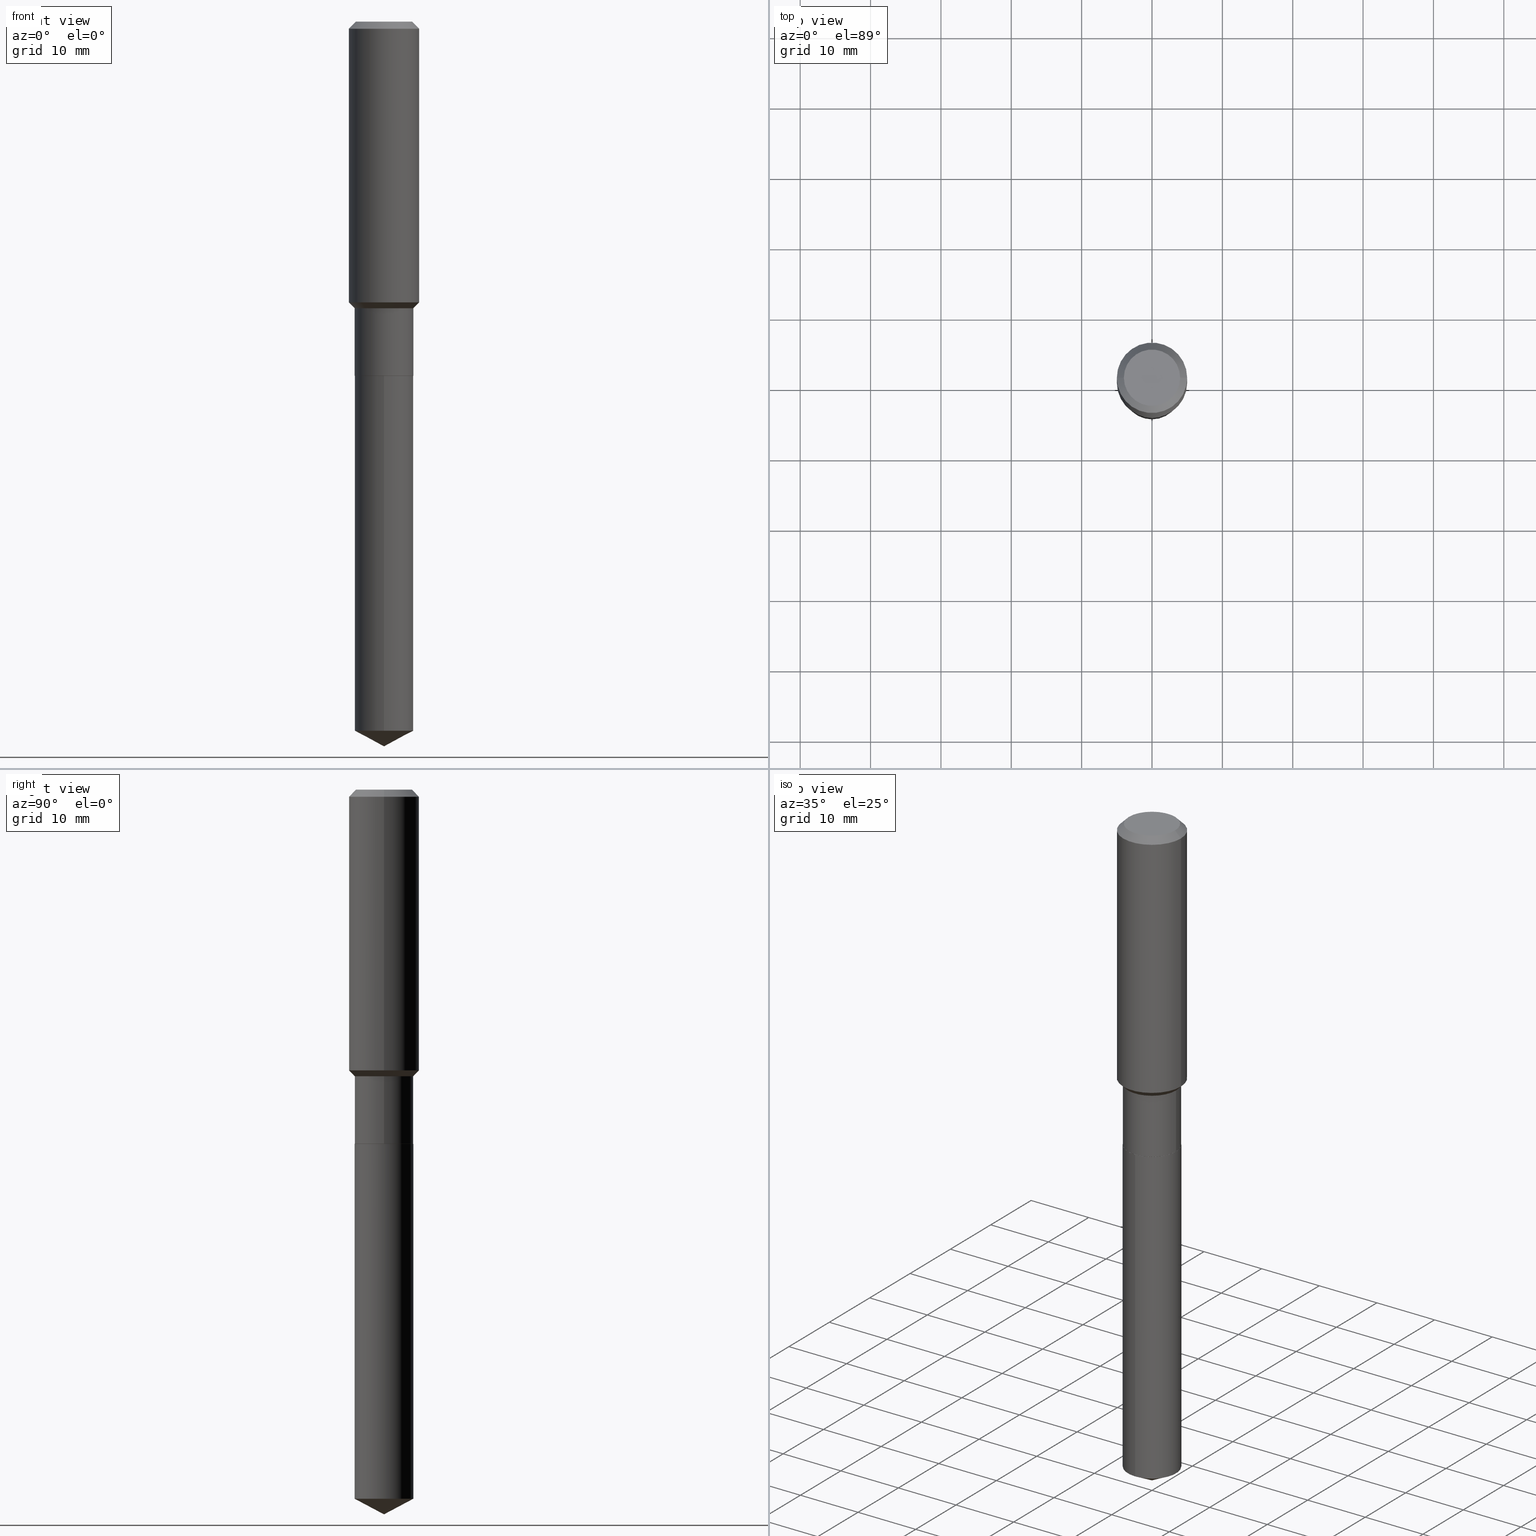
[diagram: canonical four-view strip — front | top / right | iso, engineering-drawing reading convention]
A machine part, canonical four-view strip (front | top / right | iso — engineering-drawing reading convention). The complete STEP part file that produces these views, byte-faithful:
ISO-10303-21;
HEADER;
FILE_DESCRIPTION (( 'STEP AP203' ),
    '1' );
FILE_NAME ('55176.STEP',
    '2024-04-24T16:52:32',
    ( '' ),
    ( '' ),
    'SwSTEP 2.0',
    'SolidWorks 2023',
    '' );
FILE_SCHEMA (( 'CONFIG_CONTROL_DESIGN' ));
ENDSEC;

DATA;
#1 = ADVANCED_FACE ( 'NONE', ( #239 ), #153, .T. ) ;
#2 = CARTESIAN_POINT ( 'NONE',  ( 3.922042871359721268E-29, -5.599637771236635728E-15, -1.603799999999999670 ) ) ;
#3 = APPROVAL_PERSON_ORGANIZATION ( #91, #310, #158 ) ;
#4 = FACE_OUTER_BOUND ( 'NONE', #5, .T. ) ;
#5 = EDGE_LOOP ( 'NONE', ( #387, #119, #146, #238 ) ) ;
#6 = LINE ( 'NONE', #74, #443 ) ;
#7 = EDGE_CURVE ( 'NONE', #490, #280, #385, .T. ) ;
#8 = EDGE_LOOP ( 'NONE', ( #115, #303, #164, #196 ) ) ;
#9 = DIRECTION ( 'NONE',  ( 1.000000000000000000, -6.982962677686265922E-15, 0.000000000000000000 ) ) ;
#10 = VECTOR ( 'NONE', #133, 39.37007874015748854 ) ;
#11 = AXIS2_PLACEMENT_3D ( 'NONE', #201, #121, #247 ) ;
#12 = CARTESIAN_POINT ( 'NONE',  ( 9.916650350100281471E-29, -1.415756395705443413E-14, -4.054999999999999716 ) ) ;
#13 = VERTEX_POINT ( 'NONE', #390 ) ;
#14 = CIRCLE ( 'NONE', #383, 0.1968500000000000527 ) ;
#15 = DIRECTION ( 'NONE',  ( -0.7071067811865454633, 2.468850131082235367E-15, -0.7071067811865495711 ) ) ;
#16 = VERTEX_POINT ( 'NONE', #265 ) ;
#17 = CARTESIAN_POINT ( 'NONE',  ( -0.1968500000000001915, -4.086413807978820996E-15, -1.570999999999999508 ) ) ;
#18 = CALENDAR_DATE ( 2024, 24, 4 ) ;
#19 = VERTEX_POINT ( 'NONE', #200 ) ;
#20 = LINE ( 'NONE', #93, #163 ) ;
#21 = CONICAL_SURFACE ( 'NONE', #11, 0.1640499999999999459, 0.7853981633974479459 ) ;
#22 = CONICAL_SURFACE ( 'NONE', #338, 0.1968500000000000527, 0.7853981633974453924 ) ;
#23 = CYLINDRICAL_SURFACE ( 'NONE', #34, 0.1640500000000000014 ) ;
#24 = DIRECTION ( 'NONE',  ( 1.000000000000000000, -6.982962677686265922E-15, 4.876223630392693006E-29 ) ) ;
#25 = DIRECTION ( 'NONE',  ( -2.445468806185136597E-29, 3.491481338843145583E-15, 1.000000000000000000 ) ) ;
#26 = AXIS2_PLACEMENT_3D ( 'NONE', #393, #231, #37 ) ;
#27 = AXIS2_PLACEMENT_3D ( 'NONE', #28, #25, #66 ) ;
#28 = CARTESIAN_POINT ( 'NONE',  ( 0.000000000000000000, 0.000000000000000000, 0.000000000000000000 ) ) ;
#29 = DIRECTION ( 'NONE',  ( 1.000000000000000000, -6.982962677686265922E-15, 0.000000000000000000 ) ) ;
#30 = CARTESIAN_POINT ( 'NONE',  ( -0.1640499999999999459, -4.433992413222191166E-15, -1.603799999999999670 ) ) ;
#31 = DIRECTION ( 'NONE',  ( 1.000000000000000000, -6.982962677686269077E-15, 0.000000000000000000 ) ) ;
#32 = VECTOR ( 'NONE', #198, 39.37007874015748143 ) ;
#33 = PRODUCT_DEFINITION_FORMATION_WITH_SPECIFIED_SOURCE ( 'ANY', '', #300, .NOT_KNOWN. ) ;
#34 = AXIS2_PLACEMENT_3D ( 'NONE', #334, #172, #363 ) ;
#35 = APPROVAL ( #55, 'UNSPECIFIED' ) ;
#36 = ORIENTED_EDGE ( 'NONE', *, *, #154, .F. ) ;
#37 = DIRECTION ( 'NONE',  ( 1.000000000000000000, -6.982962677686266711E-15, 4.876176775795935232E-29 ) ) ;
#38 = AXIS2_PLACEMENT_3D ( 'NONE', #257, #184, #267 ) ;
#39 = VERTEX_POINT ( 'NONE', #465 ) ;
#40 = ORIENTED_EDGE ( 'NONE', *, *, #449, .F. ) ;
#41 = CC_DESIGN_PERSON_AND_ORGANIZATION_ASSIGNMENT ( #124, #79, ( #90 ) ) ;
#42 = EDGE_CURVE ( 'NONE', #46, #13, #408, .T. ) ;
#43 = ORIENTED_EDGE ( 'NONE', *, *, #483, .F. ) ;
#44 = CARTESIAN_POINT ( 'NONE',  ( 3.922042871359721268E-29, -5.599637771236635728E-15, -1.603799999999999670 ) ) ;
#45 =( NAMED_UNIT ( * ) PLANE_ANGLE_UNIT ( ) SI_UNIT ( $, .RADIAN. ) );
#46 = VERTEX_POINT ( 'NONE', #120 ) ;
#47 = VECTOR ( 'NONE', #15, 39.37007874015748143 ) ;
#48 = AXIS2_PLACEMENT_3D ( 'NONE', #487, #418, #343 ) ;
#49 = LINE ( 'NONE', #114, #213 ) ;
#50 = CC_DESIGN_PERSON_AND_ORGANIZATION_ASSIGNMENT ( #335, #137, ( #33 ) ) ;
#51 = ORIENTED_EDGE ( 'NONE', *, *, #187, .F. ) ;
#52 = CARTESIAN_POINT ( 'NONE',  ( 4.844718251933373930E-29, -6.916973680382155964E-15, -1.981100000000000083 ) ) ;
#53 = ORIENTED_EDGE ( 'NONE', *, *, #302, .F. ) ;
#54 = DIRECTION ( 'NONE',  ( 1.000000000000000000, -6.982962677686265922E-15, 0.000000000000000000 ) ) ;
#55 = APPROVAL_STATUS ( 'not_yet_approved' ) ;
#56 = FACE_OUTER_BOUND ( 'NONE', #395, .T. ) ;
#57 = EDGE_CURVE ( 'NONE', #280, #244, #73, .T. ) ;
#58 = VECTOR ( 'NONE', #455, 39.37007874015748143 ) ;
#59 = APPROVAL_PERSON_ORGANIZATION ( #468, #139, #391 ) ;
#60 = ORIENTED_EDGE ( 'NONE', *, *, #193, .T. ) ;
#61 = UNCERTAINTY_MEASURE_WITH_UNIT (LENGTH_MEASURE( 1.000000000000000082E-05 ), #463, 'distance_accuracy_value', 'NONE');
#62 = DIRECTION ( 'NONE',  ( 0.7071067811862576935, -2.468850131079221129E-15, 0.7071067811868373409 ) ) ;
#63 = CARTESIAN_POINT ( 'NONE',  ( -9.427742298522567634E-47, 1.346031739168368355E-32, 3.855188123715870730E-18 ) ) ;
#64 = CARTESIAN_POINT ( 'NONE',  ( 2.533972832064166786E-29, -1.022609264109647642E-14, -1.981099999999999861 ) ) ;
#65 = AXIS2_PLACEMENT_3D ( 'NONE', #294, #186, #75 ) ;
#66 = DIRECTION ( 'NONE',  ( 1.000000000000000000, -6.982962677686266711E-15, 4.876176775795935793E-29 ) ) ;
#67 = DIRECTION ( 'NONE',  ( -0.7071067811862576935, 7.493145998869306553E-15, 0.7071067811868373409 ) ) ;
#68 = EDGE_CURVE ( 'NONE', #244, #241, #144, .T. ) ;
#69 = DIRECTION ( 'NONE',  ( 1.000000000000000000, -6.982962677686265922E-15, 4.876176775795935793E-29 ) ) ;
#70 = ADVANCED_FACE ( 'NONE', ( #347 ), #317, .T. ) ;
#71 = AXIS2_PLACEMENT_3D ( 'NONE', #240, #356, #326 ) ;
#72 = CLOSED_SHELL ( 'NONE', ( #278, #243, #286, #70, #127, #216, #475, #1, #307, #416, #333, #97 ) ) ;
#73 = LINE ( 'NONE', #195, #58 ) ;
#74 = CARTESIAN_POINT ( 'NONE',  ( -0.1968500000000001082, 1.398703375343757985E-15, -9.682923725166787881E-30 ) ) ;
#75 = DIRECTION ( 'NONE',  ( 1.000000000000000000, -6.982962677686266711E-15, 0.000000000000000000 ) ) ;
#76 = ORIENTED_EDGE ( 'NONE', *, *, #413, .F. ) ;
#77 = CIRCLE ( 'NONE', #205, 0.1640500000000000291 ) ;
#78 = AXIS2_PLACEMENT_3D ( 'NONE', #281, #210, #467 ) ;
#79 = PERSON_AND_ORGANIZATION_ROLE ( 'creator' ) ;
#80 = ORIENTED_EDGE ( 'NONE', *, *, #374, .T. ) ;
#81 = EDGE_CURVE ( 'NONE', #13, #46, #203, .T. ) ;
#82 = CARTESIAN_POINT ( 'NONE',  ( 0.000000000000000000, 0.000000000000000000, 0.000000000000000000 ) ) ;
#83 = CARTESIAN_POINT ( 'NONE',  ( 1.165645358014541000E-15, 0.1640499999999861236, -3.967773067735935744 ) ) ;
#84 = ORIENTED_EDGE ( 'NONE', *, *, #68, .F. ) ;
#85 = CYLINDRICAL_SURFACE ( 'NONE', #26, 0.1640500000000000014 ) ;
#86 = DIRECTION ( 'NONE',  ( 1.000000000000000000, -6.982962677686266711E-15, 0.000000000000000000 ) ) ;
#87 = ORIENTED_EDGE ( 'NONE', *, *, #68, .T. ) ;
#88 = CYLINDRICAL_SURFACE ( 'NONE', #102, 0.1640500000000000014 ) ;
#89 = CIRCLE ( 'NONE', #162, 0.1640500000000000291 ) ;
#90 = PRODUCT_DEFINITION ( 'UNKNOWN', '', #33, #94 ) ;
#91 = PERSON_AND_ORGANIZATION ( #183, #135 ) ;
#92 = ORIENTED_EDGE ( 'NONE', *, *, #271, .F. ) ;
#93 = CARTESIAN_POINT ( 'NONE',  ( 1.165645358014492485E-15, 0.1640499999999930625, -1.981100000000000305 ) ) ;
#94 = DESIGN_CONTEXT ( 'detailed design', #182, 'design' ) ;
#95 = CARTESIAN_POINT ( 'NONE',  ( 0.1640499999999999459, -6.745192798511067391E-15, -1.603799999999999670 ) ) ;
#96 = COORDINATED_UNIVERSAL_TIME_OFFSET ( 5, 0, .BEHIND. ) ;
#97 = ADVANCED_FACE ( 'NONE', ( #161 ), #269, .T. ) ;
#98 = CARTESIAN_POINT ( 'NONE',  ( 9.916652700693173473E-29, -1.415756395705443413E-14, -4.054999999999999716 ) ) ;
#99 = AXIS2_PLACEMENT_3D ( 'NONE', #2, #111, #426 ) ;
#100 = PERSON_AND_ORGANIZATION ( #183, #135 ) ;
#101 = AXIS2_PLACEMENT_3D ( 'NONE', #299, #482, #380 ) ;
#102 = AXIS2_PLACEMENT_3D ( 'NONE', #368, #255, #218 ) ;
#103 = CARTESIAN_POINT ( 'NONE',  ( -0.1968500000000000527, 1.237136582792286422E-15, -0.03937000000000027283 ) ) ;
#104 = CARTESIAN_POINT ( 'NONE',  ( 3.841831494516847952E-29, -5.485117183322580361E-15, -1.570999999999999508 ) ) ;
#105 = CARTESIAN_POINT ( 'NONE',  ( 4.844718251933373930E-29, -6.916973680382155964E-15, -1.981100000000000083 ) ) ;
#106 = DIRECTION ( 'NONE',  ( 1.000000000000000000, -6.982962677686265922E-15, 0.000000000000000000 ) ) ;
#107 = MANIFOLD_SOLID_BREP ( 'Body-Move/Copy2[1]', #177 ) ;
#108 = EDGE_CURVE ( 'NONE', #197, #315, #6, .T. ) ;
#109 = CARTESIAN_POINT ( 'NONE',  ( -1.145555027274334830E-15, -0.1640500000000138514, -3.967773067735934855 ) ) ;
#110 = CARTESIAN_POINT ( 'NONE',  ( 9.916382287464603544E-29, -1.415794783800590008E-14, -4.054999999999999716 ) ) ;
#111 = DIRECTION ( 'NONE',  ( -2.445468806185136597E-29, 3.491481338843145583E-15, 1.000000000000000000 ) ) ;
#112 = CYLINDRICAL_SURFACE ( 'NONE', #48, 0.1640500000000000014 ) ;
#113 = ORIENTED_EDGE ( 'NONE', *, *, #234, .T. ) ;
#114 = CARTESIAN_POINT ( 'NONE',  ( 0.1968500000000001082, -1.374596203102542397E-15, 9.598753983154305062E-30 ) ) ;
#115 = ORIENTED_EDGE ( 'NONE', *, *, #336, .F. ) ;
#116 = AXIS2_PLACEMENT_3D ( 'NONE', #117, #242, #277 ) ;
#117 = CARTESIAN_POINT ( 'NONE',  ( 4.844718251933373369E-29, -6.916973680382155175E-15, -1.981099999999999861 ) ) ;
#118 = COORDINATED_UNIVERSAL_TIME_OFFSET ( 5, 0, .BEHIND. ) ;
#119 = ORIENTED_EDGE ( 'NONE', *, *, #214, .F. ) ;
#120 = CARTESIAN_POINT ( 'NONE',  ( 0.1640499999999999459, -6.745192798511067391E-15, -1.603799999999999670 ) ) ;
#121 = DIRECTION ( 'NONE',  ( -2.445468806185136597E-29, 3.491481338843145583E-15, 1.000000000000000000 ) ) ;
#122 = EDGE_LOOP ( 'NONE', ( #466, #354, #43, #309 ) ) ;
#123 = CARTESIAN_POINT ( 'NONE',  ( 9.627810689950950651E-31, -1.374596203102555808E-16, -0.03937000000000027283 ) ) ;
#124 = PERSON_AND_ORGANIZATION ( #183, #135 ) ;
#125 = ORIENTED_EDGE ( 'NONE', *, *, #7, .F. ) ;
#126 = DIRECTION ( 'NONE',  ( -6.982962677686265133E-15, -1.000000000000000000, 3.330506545156066257E-15 ) ) ;
#127 = ADVANCED_FACE ( 'NONE', ( #434 ), #85, .T. ) ;
#128 = ORIENTED_EDGE ( 'NONE', *, *, #108, .T. ) ;
#129 = DIRECTION ( 'NONE',  ( -6.982962677686265133E-15, -1.000000000000000000, 3.541896320645534047E-15 ) ) ;
#130 = CARTESIAN_POINT ( 'NONE',  ( 0.1968500000000001915, -6.859713386425121969E-15, -1.570999999999999508 ) ) ;
#131 = PRODUCT_DEFINITION_SHAPE ( 'NONE', 'NONE',  #90 ) ;
#132 = EDGE_CURVE ( 'NONE', #46, #199, #436, .T. ) ;
#133 = DIRECTION ( 'NONE',  ( 6.273719981627774754E-15, 0.8829475928589309852, 0.4694715627858829787 ) ) ;
#134 = VECTOR ( 'NONE', #291, 39.37007874015748143 ) ;
#135 = ORGANIZATION ( 'UNSPECIFIED', 'UNSPECIFIED', '' ) ;
#136 = DIRECTION ( 'NONE',  ( -2.438088387897960049E-29, 3.491481338843145188E-15, 1.000000000000000000 ) ) ;
#137 = PERSON_AND_ORGANIZATION_ROLE ( 'design_supplier' ) ;
#138 = CARTESIAN_POINT ( 'NONE',  ( -0.1968500000000000527, -1.412585026472659394E-15, -0.03937000000000027283 ) ) ;
#139 = APPROVAL ( #312, 'UNSPECIFIED' ) ;
#140 = CARTESIAN_POINT ( 'NONE',  ( -4.713871149261283817E-47, 6.730158695841841775E-33, 1.927594061857935365E-18 ) ) ;
#141 = APPLICATION_CONTEXT ( 'configuration controlled 3d designs of mechanical parts and assemblies' ) ;
#142 = AXIS2_PLACEMENT_3D ( 'NONE', #227, #226, #379 ) ;
#143 = DIRECTION ( 'NONE',  ( -0.7071067811865472397, 7.493145998870354160E-15, 0.7071067811865477948 ) ) ;
#144 = CIRCLE ( 'NONE', #116, 0.1640500000000000014 ) ;
#145 = EDGE_CURVE ( 'NONE', #280, #486, #189, .T. ) ;
#146 = ORIENTED_EDGE ( 'NONE', *, *, #185, .T. ) ;
#147 = EDGE_LOOP ( 'NONE', ( #51, #248, #322, #438 ) ) ;
#148 = VECTOR ( 'NONE', #417, 39.37007874015748143 ) ;
#149 = EDGE_LOOP ( 'NONE', ( #425, #457, #411 ) ) ;
#150 = EDGE_CURVE ( 'NONE', #486, #280, #274, .T. ) ;
#151 = FACE_OUTER_BOUND ( 'NONE', #256, .T. ) ;
#152 = ORIENTED_EDGE ( 'NONE', *, *, #336, .T. ) ;
#153 = CYLINDRICAL_SURFACE ( 'NONE', #360, 0.1968500000000001082 ) ;
#154 = EDGE_CURVE ( 'NONE', #39, #276, #229, .T. ) ;
#155 = APPLICATION_PROTOCOL_DEFINITION ( 'international standard', 'config_control_design', 1994, #182 ) ;
#156 = EDGE_LOOP ( 'NONE', ( #420, #80, #194, #359 ) ) ;
#157 = DIRECTION ( 'NONE',  ( 1.000000000000000000, -6.982962677686266711E-15, 0.000000000000000000 ) ) ;
#158 = APPROVAL_ROLE ( '' ) ;
#159 = EDGE_LOOP ( 'NONE', ( #313, #324 ) ) ;
#160 = AXIS2_PLACEMENT_3D ( 'NONE', #474, #211, #24 ) ;
#161 = FACE_OUTER_BOUND ( 'NONE', #8, .T. ) ;
#162 = AXIS2_PLACEMENT_3D ( 'NONE', #376, #450, #261 ) ;
#163 = VECTOR ( 'NONE', #249, 39.37007874015748143 ) ;
#164 = ORIENTED_EDGE ( 'NONE', *, *, #271, .T. ) ;
#165 = ADVANCED_FACE ( 'NONE', ( #56 ), #488, .T. ) ;
#166 = DIRECTION ( 'NONE',  ( -2.445536461183793297E-29, 3.491384453034385749E-15, 1.000000000000000000 ) ) ;
#167 = APPLICATION_PROTOCOL_DEFINITION ( 'international standard', 'config_control_design', 1994, #141 ) ;
#168 = EDGE_LOOP ( 'NONE', ( #206, #345, #84, #431 ) ) ;
#169 = CARTESIAN_POINT ( 'NONE',  ( -8.636444671994957009E-28, 1.232983249305952422E-13, 35.31507874015748172 ) ) ;
#170 = DIRECTION ( 'NONE',  ( -2.445468806185136597E-29, 3.491481338843145583E-15, 1.000000000000000000 ) ) ;
#171 = ORIENTED_EDGE ( 'NONE', *, *, #459, .T. ) ;
#172 = DIRECTION ( 'NONE',  ( -2.445536461183793297E-29, 3.491384453034385749E-15, 1.000000000000000000 ) ) ;
#173 = CARTESIAN_POINT ( 'NONE',  ( -0.1640500000000000014, 1.165645358014444365E-15, -8.069513015563172164E-30 ) ) ;
#174 = APPROVAL_DATE_TIME ( #232, #310 ) ;
#175 = CARTESIAN_POINT ( 'NONE',  ( 9.703199675533465225E-29, -1.385321314233753012E-14, -3.967773067735935300 ) ) ;
#176 = CARTESIAN_POINT ( 'NONE',  ( 4.844718251933373930E-29, -6.916973680382155964E-15, -1.981100000000000083 ) ) ;
#177 = CLOSED_SHELL ( 'NONE', ( #409, #165, #228, #223, #419 ) ) ;
#178 = PERSON_AND_ORGANIZATION_ROLE ( 'creator' ) ;
#179 = LOCAL_TIME ( 12, 52, 32.00000000000000000, #341 ) ;
#180 = CC_DESIGN_PERSON_AND_ORGANIZATION_ASSIGNMENT ( #388, #287, ( #300 ) ) ;
#181 = DIRECTION ( 'NONE',  ( -2.445468806185136597E-29, 3.491481338843145583E-15, 1.000000000000000000 ) ) ;
#182 = APPLICATION_CONTEXT ( 'configuration controlled 3d designs of mechanical parts and assemblies' ) ;
#183 = PERSON ( 'UNSPECIFIED', 'UNSPECIFIED', 'UNSPECIFIED', ('UNSPECIFIED'), ('UNSPECIFIED'), ('UNSPECIFIED') ) ;
#184 = DIRECTION ( 'NONE',  ( -2.445536461183793297E-29, 3.491384453034385749E-15, 1.000000000000000000 ) ) ;
#185 = EDGE_CURVE ( 'NONE', #464, #315, #442, .T. ) ;
#186 = DIRECTION ( 'NONE',  ( -2.445468806185136597E-29, 3.491481338843145583E-15, 1.000000000000000000 ) ) ;
#187 = EDGE_CURVE ( 'NONE', #16, #464, #446, .T. ) ;
#188 = ORIENTED_EDGE ( 'NONE', *, *, #319, .F. ) ;
#189 = CIRCLE ( 'NONE', #212, 0.1640500000000000014 ) ;
#190 = VECTOR ( 'NONE', #67, 39.37007874015748143 ) ;
#191 = PLANE ( 'NONE',  #142 ) ;
#192 = AXIS2_PLACEMENT_3D ( 'NONE', #44, #268, #157 ) ;
#193 = EDGE_CURVE ( 'NONE', #490, #486, #476, .T. ) ;
#194 = ORIENTED_EDGE ( 'NONE', *, *, #319, .T. ) ;
#195 = CARTESIAN_POINT ( 'NONE',  ( -1.145555027274383345E-15, -0.1640500000000069125, -1.981099999999999195 ) ) ;
#196 = ORIENTED_EDGE ( 'NONE', *, *, #374, .F. ) ;
#197 = VERTEX_POINT ( 'NONE', #17 ) ;
#198 = DIRECTION ( 'NONE',  ( -6.165590087286845496E-15, -0.8829475928589277656, 0.4694715627858892515 ) ) ;
#199 = VERTEX_POINT ( 'NONE', #130 ) ;
#200 = CARTESIAN_POINT ( 'NONE',  ( 0.1640500000000000291, -8.060782966987165334E-15, -1.980599999999999694 ) ) ;
#201 = CARTESIAN_POINT ( 'NONE',  ( 3.922042871359721268E-29, -5.599637771236635728E-15, -1.603799999999999670 ) ) ;
#202 = ORIENTED_EDGE ( 'NONE', *, *, #150, .T. ) ;
#203 = CIRCLE ( 'NONE', #99, 0.1640499999999999459 ) ;
#204 = ORIENTED_EDGE ( 'NONE', *, *, #413, .T. ) ;
#205 = AXIS2_PLACEMENT_3D ( 'NONE', #342, #485, #31 ) ;
#206 = ORIENTED_EDGE ( 'NONE', *, *, #145, .T. ) ;
#207 = DIRECTION ( 'NONE',  ( 1.000000000000000000, -6.982962677686265922E-15, 4.876223630392693006E-29 ) ) ;
#208 = CARTESIAN_POINT ( 'NONE',  ( -0.1574800000000000089, 1.168406772637159815E-15, 3.855188123707939751E-18 ) ) ;
#209 = ORIENTED_EDGE ( 'NONE', *, *, #81, .T. ) ;
#210 = DIRECTION ( 'NONE',  ( -2.445536461183793297E-29, 3.491384453034385749E-15, 1.000000000000000000 ) ) ;
#211 = DIRECTION ( 'NONE',  ( -2.445468806185136597E-29, 3.491481338843145583E-15, 1.000000000000000000 ) ) ;
#212 = AXIS2_PLACEMENT_3D ( 'NONE', #175, #325, #126 ) ;
#213 = VECTOR ( 'NONE', #364, 39.37007874015748143 ) ;
#214 = EDGE_CURVE ( 'NONE', #464, #16, #430, .T. ) ;
#215 = CARTESIAN_POINT ( 'NONE',  ( 0.1635500000000000009, -8.059037226317744619E-15, -1.981100000000000083 ) ) ;
#216 = ADVANCED_FACE ( 'NONE', ( #366 ), #88, .T. ) ;
#217 = PERSON_AND_ORGANIZATION_ROLE ( 'classification_officer' ) ;
#218 = DIRECTION ( 'NONE',  ( 1.000000000000000000, -6.982962677686266711E-15, 4.876176775795935232E-29 ) ) ;
#219 = CALENDAR_DATE ( 2024, 24, 4 ) ;
#220 = EDGE_LOOP ( 'NONE', ( #327, #128, #429, #392 ) ) ;
#221 = LINE ( 'NONE', #258, #190 ) ;
#222 =( GEOMETRIC_REPRESENTATION_CONTEXT ( 3 ) GLOBAL_UNCERTAINTY_ASSIGNED_CONTEXT ( ( #61 ) ) GLOBAL_UNIT_ASSIGNED_CONTEXT ( ( #463, #45, #350 ) ) REPRESENTATION_CONTEXT ( 'NONE', 'WORKASPACE' ) );
#223 = ADVANCED_FACE ( 'NONE', ( #245 ), #23, .T. ) ;
#224 = CARTESIAN_POINT ( 'NONE',  ( 0.1968500000000000527, -1.512055823412797583E-15, -0.03937000000000027283 ) ) ;
#225 = CC_DESIGN_PERSON_AND_ORGANIZATION_ASSIGNMENT ( #290, #178, ( #33 ) ) ;
#226 = DIRECTION ( 'NONE',  ( 2.445536461183793017E-29, -3.491384453034385749E-15, -1.000000000000000000 ) ) ;
#227 = CARTESIAN_POINT ( 'NONE',  ( 4.844718251933373369E-29, -6.916973680382155175E-15, -1.981099999999999861 ) ) ;
#228 = ADVANCED_FACE ( 'NONE', ( #470 ), #479, .T. ) ;
#229 = CIRCLE ( 'NONE', #381, 0.1635500000000000009 ) ;
#230 = PRODUCT_RELATED_PRODUCT_CATEGORY ( 'detail', '', ( #300 ) ) ;
#231 = DIRECTION ( 'NONE',  ( -2.445468806185136597E-29, 3.491481338843145583E-15, 1.000000000000000000 ) ) ;
#232 = DATE_AND_TIME ( #432, #296 ) ;
#233 = EDGE_LOOP ( 'NONE', ( #204, #113, #399, #188 ) ) ;
#234 = EDGE_CURVE ( 'NONE', #389, #13, #288, .T. ) ;
#235 = CONICAL_SURFACE ( 'NONE', #369, 0.1635500000000000009, 0.7853981633970383847 ) ;
#236 = DIMENSIONAL_EXPONENTS ( 1.000000000000000000, 0.000000000000000000, 0.000000000000000000, 0.000000000000000000, 0.000000000000000000, 0.000000000000000000, 0.000000000000000000 ) ;
#237 = APPROVAL_STATUS ( 'not_yet_approved' ) ;
#238 = ORIENTED_EDGE ( 'NONE', *, *, #330, .T. ) ;
#239 = FACE_OUTER_BOUND ( 'NONE', #469, .T. ) ;
#240 = CARTESIAN_POINT ( 'NONE',  ( 3.841831494516847952E-29, -5.485117183322580361E-15, -1.570999999999999508 ) ) ;
#241 = VERTEX_POINT ( 'NONE', #397 ) ;
#242 = DIRECTION ( 'NONE',  ( -2.445536461183793297E-29, 3.491384453034385749E-15, 1.000000000000000000 ) ) ;
#243 = ADVANCED_FACE ( 'NONE', ( #331 ), #22, .T. ) ;
#244 = VERTEX_POINT ( 'NONE', #445 ) ;
#245 = FACE_OUTER_BOUND ( 'NONE', #435, .T. ) ;
#246 = CC_DESIGN_APPROVAL ( #35, ( #348 ) ) ;
#247 = DIRECTION ( 'NONE',  ( 1.000000000000000000, -6.982962677686266711E-15, 0.000000000000000000 ) ) ;
#248 = ORIENTED_EDGE ( 'NONE', *, *, #452, .T. ) ;
#249 = DIRECTION ( 'NONE',  ( -2.445536461183793297E-29, 3.491384453034385749E-15, 1.000000000000000000 ) ) ;
#250 = DIRECTION ( 'NONE',  ( -6.982962677686265133E-15, -1.000000000000000000, 3.330506545156066257E-15 ) ) ;
#251 = APPROVAL_DATE_TIME ( #447, #35 ) ;
#252 = CARTESIAN_POINT ( 'NONE',  ( 9.627810689950950651E-31, -1.374596203102555808E-16, -0.03937000000000027283 ) ) ;
#253 = CC_DESIGN_SECURITY_CLASSIFICATION ( #348, ( #33 ) ) ;
#254 = VECTOR ( 'NONE', #404, 39.37007874015748143 ) ;
#255 = DIRECTION ( 'NONE',  ( -2.445468806185136597E-29, 3.491481338843145583E-15, 1.000000000000000000 ) ) ;
#256 = EDGE_LOOP ( 'NONE', ( #87, #283 ) ) ;
#257 = CARTESIAN_POINT ( 'NONE',  ( 4.844718251933373369E-29, -6.916973680382155175E-15, -1.981099999999999861 ) ) ;
#258 = CARTESIAN_POINT ( 'NONE',  ( -0.1635500000000000009, -5.754881036046512300E-15, -1.981100000000000083 ) ) ;
#259 = AXIS2_PLACEMENT_3D ( 'NONE', #458, #361, #471 ) ;
#260 = FACE_OUTER_BOUND ( 'NONE', #349, .T. ) ;
#261 = DIRECTION ( 'NONE',  ( 1.000000000000000000, -6.982962677686269077E-15, 0.000000000000000000 ) ) ;
#262 = EDGE_CURVE ( 'NONE', #365, #315, #14, .T. ) ;
#263 = EDGE_CURVE ( 'NONE', #486, #241, #20, .T. ) ;
#264 = CIRCLE ( 'NONE', #38, 0.1640500000000000014 ) ;
#265 = CARTESIAN_POINT ( 'NONE',  ( 0.1574800000000000089, -1.284169937930321386E-15, 3.855188123724205385E-18 ) ) ;
#266 = CARTESIAN_POINT ( 'NONE',  ( 4.844718251933373930E-29, -6.916973680382155964E-15, -1.981100000000000083 ) ) ;
#267 = DIRECTION ( 'NONE',  ( -6.982962677686265133E-15, -1.000000000000000000, 3.330506545156066257E-15 ) ) ;
#268 = DIRECTION ( 'NONE',  ( -2.445468806185136597E-29, 3.491481338843145583E-15, 1.000000000000000000 ) ) ;
#269 = CONICAL_SURFACE ( 'NONE', #297, 0.1635500000000000009, 0.7853981633970383847 ) ;
#270 = ORIENTED_EDGE ( 'NONE', *, *, #263, .F. ) ;
#271 = EDGE_CURVE ( 'NONE', #276, #19, #401, .T. ) ;
#272 = CC_DESIGN_APPROVAL ( #139, ( #90 ) ) ;
#273 = DIRECTION ( 'NONE',  ( -2.445468806185136877E-29, 3.491481338843145188E-15, 1.000000000000000000 ) ) ;
#274 = CIRCLE ( 'NONE', #406, 0.1640500000000000014 ) ;
#275 = FACE_OUTER_BOUND ( 'NONE', #433, .T. ) ;
#276 = VERTEX_POINT ( 'NONE', #215 ) ;
#277 = DIRECTION ( 'NONE',  ( -6.982962677686265133E-15, -1.000000000000000000, 3.330506545156066257E-15 ) ) ;
#278 = ADVANCED_FACE ( 'NONE', ( #372 ), #235, .T. ) ;
#279 = MECHANICAL_CONTEXT ( 'NONE', #141, 'mechanical' ) ;
#280 = VERTEX_POINT ( 'NONE', #109 ) ;
#281 = CARTESIAN_POINT ( 'NONE',  ( -8.636444671994957009E-28, 1.232983249305952422E-13, 35.31507874015748172 ) ) ;
#282 = CALENDAR_DATE ( 2024, 24, 4 ) ;
#283 = ORIENTED_EDGE ( 'NONE', *, *, #302, .T. ) ;
#284 = CC_DESIGN_APPROVAL ( #310, ( #33 ) ) ;
#285 = DIRECTION ( 'NONE',  ( 2.445468806185136597E-29, -3.491481338843145583E-15, -1.000000000000000000 ) ) ;
#286 = ADVANCED_FACE ( 'NONE', ( #340 ), #337, .T. ) ;
#287 = PERSON_AND_ORGANIZATION_ROLE ( 'design_owner' ) ;
#288 = LINE ( 'NONE', #173, #134 ) ;
#289 = DIRECTION ( 'NONE',  ( -1.000000000000000000, 6.982962677686266711E-15, 0.000000000000000000 ) ) ;
#290 = PERSON_AND_ORGANIZATION ( #183, #135 ) ;
#291 = DIRECTION ( 'NONE',  ( -2.445468806185136877E-29, 3.491481338843145188E-15, 1.000000000000000000 ) ) ;
#292 = VECTOR ( 'NONE', #62, 39.37007874015748143 ) ;
#293 = DIRECTION ( 'NONE',  ( 2.438088387897960049E-29, -3.491481338843145188E-15, -1.000000000000000000 ) ) ;
#294 = CARTESIAN_POINT ( 'NONE',  ( 9.627810689950950651E-31, -1.374596203102555808E-16, -0.03937000000000027283 ) ) ;
#295 = PLANE ( 'NONE',  #444 ) ;
#296 = LOCAL_TIME ( 12, 52, 32.00000000000000000, #316 ) ;
#297 = AXIS2_PLACEMENT_3D ( 'NONE', #266, #352, #9 ) ;
#298 = ORIENTED_EDGE ( 'NONE', *, *, #108, .F. ) ;
#299 = CARTESIAN_POINT ( 'NONE',  ( 9.627810689950950651E-31, -1.374596203102555808E-16, -0.03937000000000027283 ) ) ;
#300 = PRODUCT ( '55176', '55176', '', ( #279 ) ) ;
#301 = ORIENTED_EDGE ( 'NONE', *, *, #132, .T. ) ;
#302 = EDGE_CURVE ( 'NONE', #241, #244, #264, .T. ) ;
#303 = ORIENTED_EDGE ( 'NONE', *, *, #154, .T. ) ;
#304 = CIRCLE ( 'NONE', #65, 0.1968500000000000527 ) ;
#305 = CIRCLE ( 'NONE', #367, 0.1968500000000001915 ) ;
#306 = DIRECTION ( 'NONE',  ( -2.445468806185136597E-29, 3.491481338843145583E-15, 1.000000000000000000 ) ) ;
#307 = ADVANCED_FACE ( 'NONE', ( #4 ), #328, .T. ) ;
#308 = LINE ( 'NONE', #456, #377 ) ;
#309 = ORIENTED_EDGE ( 'NONE', *, *, #132, .F. ) ;
#310 = APPROVAL ( #237, 'UNSPECIFIED' ) ;
#311 = MANIFOLD_SOLID_BREP ( 'Body-Move/Copy2[2]', #72 ) ;
#312 = APPROVAL_STATUS ( 'not_yet_approved' ) ;
#313 = ORIENTED_EDGE ( 'NONE', *, *, #214, .T. ) ;
#314 = ADVANCED_BREP_SHAPE_REPRESENTATION ( '55176', ( #107, #311, #259 ), #222 ) ;
#315 = VERTEX_POINT ( 'NONE', #138 ) ;
#316 = COORDINATED_UNIVERSAL_TIME_OFFSET ( 5, 0, .BEHIND. ) ;
#317 = CONICAL_SURFACE ( 'NONE', #192, 0.1640499999999999459, 0.7853981633974479459 ) ;
#318 = ORIENTED_EDGE ( 'NONE', *, *, #489, .T. ) ;
#319 = EDGE_CURVE ( 'NONE', #19, #46, #453, .T. ) ;
#320 = ORIENTED_EDGE ( 'NONE', *, *, #57, .T. ) ;
#321 = AXIS2_PLACEMENT_3D ( 'NONE', #63, #478, #207 ) ;
#322 = ORIENTED_EDGE ( 'NONE', *, *, #262, .T. ) ;
#323 = DIRECTION ( 'NONE',  ( -2.445468806185136597E-29, 3.491481338843145583E-15, 1.000000000000000000 ) ) ;
#324 = ORIENTED_EDGE ( 'NONE', *, *, #187, .T. ) ;
#325 = DIRECTION ( 'NONE',  ( -2.445536461183793297E-29, 3.491384453034385749E-15, 1.000000000000000000 ) ) ;
#326 = DIRECTION ( 'NONE',  ( 1.000000000000000000, -6.982962677686266711E-15, 0.000000000000000000 ) ) ;
#327 = ORIENTED_EDGE ( 'NONE', *, *, #483, .T. ) ;
#328 = CONICAL_SURFACE ( 'NONE', #101, 0.1968500000000000527, 0.7853981633974453924 ) ;
#329 = CARTESIAN_POINT ( 'NONE',  ( 9.703199675533465225E-29, -1.385321314233753012E-14, -3.967773067735935300 ) ) ;
#330 = EDGE_CURVE ( 'NONE', #315, #365, #304, .T. ) ;
#331 = FACE_OUTER_BOUND ( 'NONE', #147, .T. ) ;
#332 = DATE_AND_TIME ( #371, #396 ) ;
#333 = ADVANCED_FACE ( 'NONE', ( #260 ), #346, .F. ) ;
#334 = CARTESIAN_POINT ( 'NONE',  ( 4.844718251933373369E-29, -6.916973680382155175E-15, -1.981099999999999861 ) ) ;
#335 = PERSON_AND_ORGANIZATION ( #183, #135 ) ;
#336 = EDGE_CURVE ( 'NONE', #39, #389, #221, .T. ) ;
#337 = CYLINDRICAL_SURFACE ( 'NONE', #27, 0.1968500000000001082 ) ;
#338 = AXIS2_PLACEMENT_3D ( 'NONE', #123, #285, #289 ) ;
#339 = AXIS2_PLACEMENT_3D ( 'NONE', #64, #136, #69 ) ;
#340 = FACE_OUTER_BOUND ( 'NONE', #220, .T. ) ;
#341 = COORDINATED_UNIVERSAL_TIME_OFFSET ( 5, 0, .BEHIND. ) ;
#342 = CARTESIAN_POINT ( 'NONE',  ( 4.843495517530280568E-29, -6.915227939712732882E-15, -1.980599999999999694 ) ) ;
#343 = DIRECTION ( 'NONE',  ( -6.982962677686265133E-15, -1.000000000000000000, 3.330506545156066257E-15 ) ) ;
#344 = AXIS2_PLACEMENT_3D ( 'NONE', #422, #355, #384 ) ;
#345 = ORIENTED_EDGE ( 'NONE', *, *, #263, .T. ) ;
#346 = PLANE ( 'NONE',  #339 ) ;
#347 = FACE_OUTER_BOUND ( 'NONE', #122, .T. ) ;
#348 = SECURITY_CLASSIFICATION ( '', '', #410 ) ;
#349 = EDGE_LOOP ( 'NONE', ( #351, #36 ) ) ;
#350 =( NAMED_UNIT ( * ) SI_UNIT ( $, .STERADIAN. ) SOLID_ANGLE_UNIT ( ) );
#351 = ORIENTED_EDGE ( 'NONE', *, *, #400, .F. ) ;
#352 = DIRECTION ( 'NONE',  ( -2.445468806185136597E-29, 3.491481338843145583E-15, 1.000000000000000000 ) ) ;
#353 = DATE_AND_TIME ( #18, #421 ) ;
#354 = ORIENTED_EDGE ( 'NONE', *, *, #449, .T. ) ;
#355 = DIRECTION ( 'NONE',  ( -2.445468806185136597E-29, 3.491481338843145583E-15, 1.000000000000000000 ) ) ;
#356 = DIRECTION ( 'NONE',  ( -2.445468806185136597E-29, 3.491481338843145583E-15, 1.000000000000000000 ) ) ;
#357 = AXIS2_PLACEMENT_3D ( 'NONE', #169, #166, #129 ) ;
#358 = ORIENTED_EDGE ( 'NONE', *, *, #145, .F. ) ;
#359 = ORIENTED_EDGE ( 'NONE', *, *, #81, .F. ) ;
#360 = AXIS2_PLACEMENT_3D ( 'NONE', #82, #306, #423 ) ;
#361 = DIRECTION ( 'NONE',  ( 0.000000000000000000, 0.000000000000000000, 1.000000000000000000 ) ) ;
#362 = ORIENTED_EDGE ( 'NONE', *, *, #330, .F. ) ;
#363 = DIRECTION ( 'NONE',  ( -6.982962677686265133E-15, -1.000000000000000000, 3.330506545156066257E-15 ) ) ;
#364 = DIRECTION ( 'NONE',  ( -2.445468806185136877E-29, 3.491481338843145188E-15, 1.000000000000000000 ) ) ;
#365 = VERTEX_POINT ( 'NONE', #224 ) ;
#366 = FACE_OUTER_BOUND ( 'NONE', #156, .T. ) ;
#367 = AXIS2_PLACEMENT_3D ( 'NONE', #104, #170, #86 ) ;
#368 = CARTESIAN_POINT ( 'NONE',  ( 0.000000000000000000, 0.000000000000000000, 0.000000000000000000 ) ) ;
#369 = AXIS2_PLACEMENT_3D ( 'NONE', #176, #181, #106 ) ;
#370 = CC_DESIGN_PERSON_AND_ORGANIZATION_ASSIGNMENT ( #484, #217, ( #348 ) ) ;
#371 = CALENDAR_DATE ( 2024, 24, 4 ) ;
#372 = FACE_OUTER_BOUND ( 'NONE', #460, .T. ) ;
#373 = SHAPE_DEFINITION_REPRESENTATION ( #131, #314 ) ;
#374 = EDGE_CURVE ( 'NONE', #389, #19, #89, .T. ) ;
#375 = DIRECTION ( 'NONE',  ( 0.7071067811865454633, -7.319954787623248157E-15, -0.7071067811865495711 ) ) ;
#376 = CARTESIAN_POINT ( 'NONE',  ( 4.843495517530280568E-29, -6.915227939712732882E-15, -1.980599999999999694 ) ) ;
#377 = VECTOR ( 'NONE', #375, 39.37007874015748143 ) ;
#378 = DIRECTION ( 'NONE',  ( -2.445468806185136597E-29, 3.491481338843145583E-15, 1.000000000000000000 ) ) ;
#379 = DIRECTION ( 'NONE',  ( 6.982962677686265922E-15, 1.000000000000000000, -3.491384453034385749E-15 ) ) ;
#380 = DIRECTION ( 'NONE',  ( -1.000000000000000000, 6.982962677686266711E-15, 0.000000000000000000 ) ) ;
#381 = AXIS2_PLACEMENT_3D ( 'NONE', #52, #441, #54 ) ;
#382 = VECTOR ( 'NONE', #143, 39.37007874015748143 ) ;
#383 = AXIS2_PLACEMENT_3D ( 'NONE', #252, #323, #439 ) ;
#384 = DIRECTION ( 'NONE',  ( 1.000000000000000000, -6.982962677686266711E-15, 0.000000000000000000 ) ) ;
#385 = LINE ( 'NONE', #110, #32 ) ;
#386 = LENGTH_MEASURE_WITH_UNIT ( LENGTH_MEASURE( 0.02539999999999999897 ), #398 );
#387 = ORIENTED_EDGE ( 'NONE', *, *, #452, .F. ) ;
#388 = PERSON_AND_ORGANIZATION ( #183, #135 ) ;
#389 = VERTEX_POINT ( 'NONE', #415 ) ;
#390 = CARTESIAN_POINT ( 'NONE',  ( -0.1640499999999999459, -5.091787497460239743E-15, -1.603799999999999670 ) ) ;
#391 = APPROVAL_ROLE ( '' ) ;
#392 = ORIENTED_EDGE ( 'NONE', *, *, #489, .F. ) ;
#393 = CARTESIAN_POINT ( 'NONE',  ( 0.000000000000000000, 0.000000000000000000, 0.000000000000000000 ) ) ;
#394 = COORDINATED_UNIVERSAL_TIME_OFFSET ( 5, 0, .BEHIND. ) ;
#395 = EDGE_LOOP ( 'NONE', ( #125, #60, #358 ) ) ;
#396 = LOCAL_TIME ( 12, 52, 32.00000000000000000, #96 ) ;
#397 = CARTESIAN_POINT ( 'NONE',  ( 1.165645358014541395E-15, 0.1640499999999930625, -1.981100000000000305 ) ) ;
#398 =( LENGTH_UNIT ( ) NAMED_UNIT ( * ) SI_UNIT ( $, .METRE. ) );
#399 = ORIENTED_EDGE ( 'NONE', *, *, #42, .F. ) ;
#400 = EDGE_CURVE ( 'NONE', #276, #39, #427, .T. ) ;
#401 = LINE ( 'NONE', #407, #292 ) ;
#402 = APPROVAL_ROLE ( '' ) ;
#403 = CC_DESIGN_DATE_AND_TIME_ASSIGNMENT ( #440, #437, ( #90 ) ) ;
#404 = DIRECTION ( 'NONE',  ( 0.7071067811865472397, -2.468850131082253905E-15, 0.7071067811865477948 ) ) ;
#405 = CC_DESIGN_DATE_AND_TIME_ASSIGNMENT ( #332, #477, ( #348 ) ) ;
#406 = AXIS2_PLACEMENT_3D ( 'NONE', #329, #412, #250 ) ;
#407 = CARTESIAN_POINT ( 'NONE',  ( 0.1635500000000000009, -8.059037226317744619E-15, -1.981100000000000083 ) ) ;
#408 = CIRCLE ( 'NONE', #344, 0.1640499999999999459 ) ;
#409 = ADVANCED_FACE ( 'NONE', ( #448 ), #112, .T. ) ;
#410 = SECURITY_CLASSIFICATION_LEVEL ( 'unclassified' ) ;
#411 = ORIENTED_EDGE ( 'NONE', *, *, #150, .F. ) ;
#412 = DIRECTION ( 'NONE',  ( -2.445536461183793297E-29, 3.491384453034385749E-15, 1.000000000000000000 ) ) ;
#413 = EDGE_CURVE ( 'NONE', #19, #389, #77, .T. ) ;
#414 = LINE ( 'NONE', #30, #382 ) ;
#415 = CARTESIAN_POINT ( 'NONE',  ( -0.1640500000000000291, -5.091787497460239743E-15, -1.980599999999999694 ) ) ;
#416 = ADVANCED_FACE ( 'NONE', ( #451 ), #295, .F. ) ;
#417 = DIRECTION ( 'NONE',  ( -2.445468806185136877E-29, 3.491481338843145188E-15, 1.000000000000000000 ) ) ;
#418 = DIRECTION ( 'NONE',  ( -2.445536461183793297E-29, 3.491384453034385749E-15, 1.000000000000000000 ) ) ;
#419 = ADVANCED_FACE ( 'NONE', ( #151 ), #191, .F. ) ;
#420 = ORIENTED_EDGE ( 'NONE', *, *, #234, .F. ) ;
#421 = LOCAL_TIME ( 12, 52, 32.00000000000000000, #394 ) ;
#422 = CARTESIAN_POINT ( 'NONE',  ( 3.922042871359721268E-29, -5.599637771236635728E-15, -1.603799999999999670 ) ) ;
#423 = DIRECTION ( 'NONE',  ( 1.000000000000000000, -6.982962677686266711E-15, 4.876176775795935793E-29 ) ) ;
#424 = DIRECTION ( 'NONE',  ( -1.000000000000000000, 6.982962677686265922E-15, -4.876176775795935793E-29 ) ) ;
#425 = ORIENTED_EDGE ( 'NONE', *, *, #193, .F. ) ;
#426 = DIRECTION ( 'NONE',  ( 1.000000000000000000, -6.982962677686266711E-15, 0.000000000000000000 ) ) ;
#427 = CIRCLE ( 'NONE', #462, 0.1635500000000000009 ) ;
#428 = APPROVAL_DATE_TIME ( #353, #139 ) ;
#429 = ORIENTED_EDGE ( 'NONE', *, *, #262, .F. ) ;
#430 = CIRCLE ( 'NONE', #321, 0.1574800000000000089 ) ;
#431 = ORIENTED_EDGE ( 'NONE', *, *, #57, .F. ) ;
#432 = CALENDAR_DATE ( 2024, 24, 4 ) ;
#433 = EDGE_LOOP ( 'NONE', ( #40, #209, #301, #473 ) ) ;
#434 = FACE_OUTER_BOUND ( 'NONE', #233, .T. ) ;
#435 = EDGE_LOOP ( 'NONE', ( #270, #202, #320, #53 ) ) ;
#436 = LINE ( 'NONE', #95, #254 ) ;
#437 = DATE_TIME_ROLE ( 'creation_date' ) ;
#438 = ORIENTED_EDGE ( 'NONE', *, *, #185, .F. ) ;
#439 = DIRECTION ( 'NONE',  ( 1.000000000000000000, -6.982962677686266711E-15, 0.000000000000000000 ) ) ;
#440 = DATE_AND_TIME ( #282, #480 ) ;
#441 = DIRECTION ( 'NONE',  ( -2.445468806185136597E-29, 3.491481338843145583E-15, 1.000000000000000000 ) ) ;
#442 = LINE ( 'NONE', #103, #47 ) ;
#443 = VECTOR ( 'NONE', #273, 39.37007874015748143 ) ;
#444 = AXIS2_PLACEMENT_3D ( 'NONE', #140, #293, #424 ) ;
#445 = CARTESIAN_POINT ( 'NONE',  ( -1.145555027274383345E-15, -0.1640500000000069125, -1.981099999999999195 ) ) ;
#446 = CIRCLE ( 'NONE', #160, 0.1574800000000000089 ) ;
#447 = DATE_AND_TIME ( #219, #179 ) ;
#448 = FACE_OUTER_BOUND ( 'NONE', #168, .T. ) ;
#449 = EDGE_CURVE ( 'NONE', #13, #197, #414, .T. ) ;
#450 = DIRECTION ( 'NONE',  ( -2.445468806185136597E-29, 3.491481338843145583E-15, 1.000000000000000000 ) ) ;
#451 = FACE_OUTER_BOUND ( 'NONE', #159, .T. ) ;
#452 = EDGE_CURVE ( 'NONE', #16, #365, #308, .T. ) ;
#453 = LINE ( 'NONE', #481, #148 ) ;
#454 = APPROVAL_PERSON_ORGANIZATION ( #100, #35, #402 ) ;
#455 = DIRECTION ( 'NONE',  ( -2.445536461183793297E-29, 3.491384453034385749E-15, 1.000000000000000000 ) ) ;
#456 = CARTESIAN_POINT ( 'NONE',  ( 0.1968500000000000527, -1.487948651171581996E-15, -0.03937000000000027283 ) ) ;
#457 = ORIENTED_EDGE ( 'NONE', *, *, #7, .T. ) ;
#458 = CARTESIAN_POINT ( 'NONE',  ( 0.000000000000000000, 0.000000000000000000, 0.000000000000000000 ) ) ;
#459 = EDGE_CURVE ( 'NONE', #197, #199, #305, .T. ) ;
#460 = EDGE_LOOP ( 'NONE', ( #461, #152, #76, #92 ) ) ;
#461 = ORIENTED_EDGE ( 'NONE', *, *, #400, .T. ) ;
#462 = AXIS2_PLACEMENT_3D ( 'NONE', #105, #378, #29 ) ;
#463 =( CONVERSION_BASED_UNIT ( 'INCH', #386 ) LENGTH_UNIT ( ) NAMED_UNIT ( #236 ) );
#464 = VERTEX_POINT ( 'NONE', #208 ) ;
#465 = CARTESIAN_POINT ( 'NONE',  ( -0.1635500000000000009, -5.752231808872400310E-15, -1.981100000000000083 ) ) ;
#466 = ORIENTED_EDGE ( 'NONE', *, *, #42, .T. ) ;
#467 = DIRECTION ( 'NONE',  ( -6.982962677686265133E-15, -1.000000000000000000, 3.541896320645534047E-15 ) ) ;
#468 = PERSON_AND_ORGANIZATION ( #183, #135 ) ;
#469 = EDGE_LOOP ( 'NONE', ( #298, #171, #318, #362 ) ) ;
#470 = FACE_OUTER_BOUND ( 'NONE', #149, .T. ) ;
#471 = DIRECTION ( 'NONE',  ( 1.000000000000000000, 0.000000000000000000, 0.000000000000000000 ) ) ;
#472 = CIRCLE ( 'NONE', #71, 0.1968500000000001915 ) ;
#473 = ORIENTED_EDGE ( 'NONE', *, *, #459, .F. ) ;
#474 = CARTESIAN_POINT ( 'NONE',  ( -9.427742298522567634E-47, 1.346031739168368355E-32, 3.855188123715870730E-18 ) ) ;
#475 = ADVANCED_FACE ( 'NONE', ( #275 ), #21, .T. ) ;
#476 = LINE ( 'NONE', #98, #10 ) ;
#477 = DATE_TIME_ROLE ( 'classification_date' ) ;
#478 = DIRECTION ( 'NONE',  ( -2.445468806185136597E-29, 3.491481338843145583E-15, 1.000000000000000000 ) ) ;
#479 = CONICAL_SURFACE ( 'NONE', #357, 74.04434902938409380, 1.082104136236489600 ) ;
#480 = LOCAL_TIME ( 12, 52, 32.00000000000000000, #118 ) ;
#481 = CARTESIAN_POINT ( 'NONE',  ( 0.1640500000000000014, -1.145555027274432057E-15, 7.999368000693231542E-30 ) ) ;
#482 = DIRECTION ( 'NONE',  ( 2.445468806185136597E-29, -3.491481338843145583E-15, -1.000000000000000000 ) ) ;
#483 = EDGE_CURVE ( 'NONE', #199, #197, #472, .T. ) ;
#484 = PERSON_AND_ORGANIZATION ( #183, #135 ) ;
#485 = DIRECTION ( 'NONE',  ( -2.445468806185136597E-29, 3.491481338843145583E-15, 1.000000000000000000 ) ) ;
#486 = VERTEX_POINT ( 'NONE', #83 ) ;
#487 = CARTESIAN_POINT ( 'NONE',  ( 4.844718251933373369E-29, -6.916973680382155175E-15, -1.981099999999999861 ) ) ;
#488 = CONICAL_SURFACE ( 'NONE', #78, 74.04434902938409380, 1.082104136236489600 ) ;
#489 = EDGE_CURVE ( 'NONE', #199, #365, #49, .T. ) ;
#490 = VERTEX_POINT ( 'NONE', #12 ) ;
ENDSEC;
END-ISO-10303-21;
